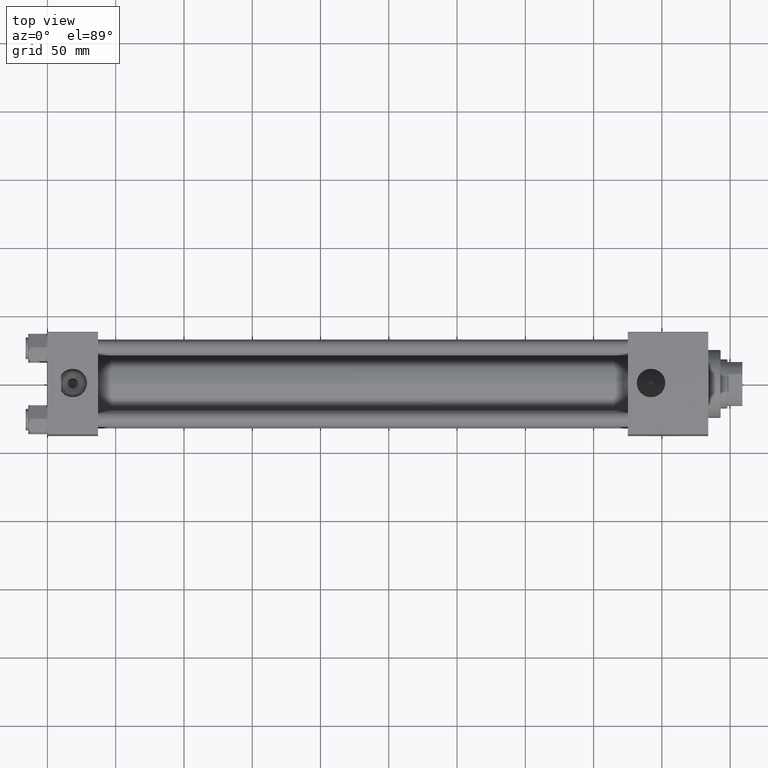
[diagram: clean part render]
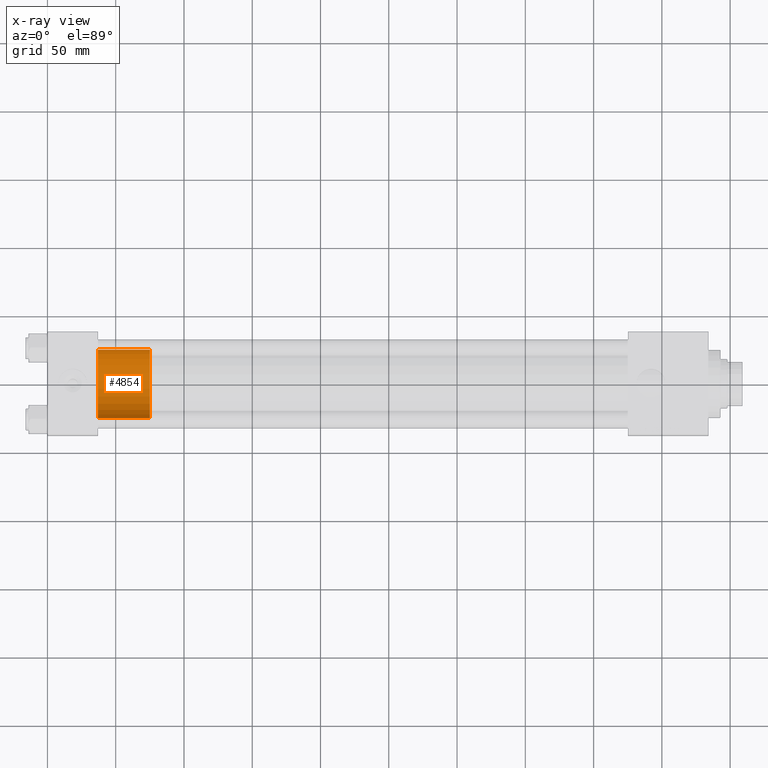
[diagram: x-ray — body ghosted, one internal face saturated and labeled with its STEP entity id]
A machine part, top view, then the same camera in x-ray: the body is ghosted and one INTERNAL B-rep face — a face not visible from any outside direction — is saturated and labeled: STEP entity #4854.
In plain terms, the highlighted cylindrical surface (edge-blend (fillet) strip) has radius 25 mm, axis along (-1, 0, 0).
Its self-contained STEP definition (entity closure, byte-faithful):
#3840 = VECTOR ( 'NONE', #8336, 1000.000000000000000 ) ;
#3967 = DIRECTION ( 'NONE',  ( 0.000000000000000000, 0.000000000000000000, 1.000000000000000000 ) ) ;
#4134 = AXIS2_PLACEMENT_3D ( 'NONE', #46118, #3967, #11345 ) ;
#4854 = ADVANCED_FACE ( 'NONE', ( #17912 ), #9034, .T. ) ;
#5343 = EDGE_CURVE ( 'NONE', #20014, #9529, #26042, .T. ) ;
#7240 = CARTESIAN_POINT ( 'NONE',  ( 25.00000000000000000, 3.061616997868383043E-15, 0.000000000000000000 ) ) ;
#7831 = ORIENTED_EDGE ( 'NONE', *, *, #31941, .T. ) ;
#8336 = DIRECTION ( 'NONE',  ( -0.000000000000000000, -0.000000000000000000, -1.000000000000000000 ) ) ;
#9034 = CYLINDRICAL_SURFACE ( 'NONE', #44663, 25.00000000000000000 ) ;
#9529 = VERTEX_POINT ( 'NONE', #32907 ) ;
#11345 = DIRECTION ( 'NONE',  ( 1.000000000000000000, 0.000000000000000000, 0.000000000000000000 ) ) ;
#12685 = EDGE_LOOP ( 'NONE', ( #47665, #7831, #49161, #45585 ) ) ;
#13846 = LINE ( 'NONE', #36446, #3840 ) ;
#15811 = DIRECTION ( 'NONE',  ( 0.000000000000000000, 0.000000000000000000, 1.000000000000000000 ) ) ;
#15863 = DIRECTION ( 'NONE',  ( -0.000000000000000000, -0.000000000000000000, -1.000000000000000000 ) ) ;
#16355 = LINE ( 'NONE', #43526, #17070 ) ;
#17070 = VECTOR ( 'NONE', #15863, 1000.000000000000000 ) ;
#17417 = DIRECTION ( 'NONE',  ( -1.000000000000000000, 0.000000000000000000, 0.000000000000000000 ) ) ;
#17912 = FACE_OUTER_BOUND ( 'NONE', #12685, .T. ) ;
#20014 = VERTEX_POINT ( 'NONE', #44515 ) ;
#26042 = CIRCLE ( 'NONE', #4134, 25.00000000000000000 ) ;
#28605 = EDGE_CURVE ( 'NONE', #9529, #40447, #13846, .T. ) ;
#29451 = CIRCLE ( 'NONE', #40791, 25.00000000000000000 ) ;
#30972 = VERTEX_POINT ( 'NONE', #7240 ) ;
#31941 = EDGE_CURVE ( 'NONE', #20014, #30972, #16355, .T. ) ;
#32907 = CARTESIAN_POINT ( 'NONE',  ( -25.00000000000000000, 0.000000000000000000, 38.00000000000000000 ) ) ;
#36446 = CARTESIAN_POINT ( 'NONE',  ( -25.00000000000000000, 0.000000000000000000, 38.00000000000000000 ) ) ;
#36708 = CARTESIAN_POINT ( 'NONE',  ( 0.000000000000000000, 0.000000000000000000, 38.00000000000000000 ) ) ;
#37215 = DIRECTION ( 'NONE',  ( -0.000000000000000000, -0.000000000000000000, -1.000000000000000000 ) ) ;
#38137 = EDGE_CURVE ( 'NONE', #30972, #40447, #29451, .T. ) ;
#40447 = VERTEX_POINT ( 'NONE', #49892 ) ;
#40791 = AXIS2_PLACEMENT_3D ( 'NONE', #43965, #15811, #43214 ) ;
#43214 = DIRECTION ( 'NONE',  ( 1.000000000000000000, 0.000000000000000000, 0.000000000000000000 ) ) ;
#43526 = CARTESIAN_POINT ( 'NONE',  ( 25.00000000000000000, 3.061616997868383043E-15, 38.00000000000000000 ) ) ;
#43965 = CARTESIAN_POINT ( 'NONE',  ( 0.000000000000000000, 0.000000000000000000, 0.000000000000000000 ) ) ;
#44515 = CARTESIAN_POINT ( 'NONE',  ( 25.00000000000000000, 3.061616997868383043E-15, 38.00000000000000000 ) ) ;
#44663 = AXIS2_PLACEMENT_3D ( 'NONE', #36708, #37215, #17417 ) ;
#45585 = ORIENTED_EDGE ( 'NONE', *, *, #28605, .F. ) ;
#46118 = CARTESIAN_POINT ( 'NONE',  ( 0.000000000000000000, 0.000000000000000000, 38.00000000000000000 ) ) ;
#47665 = ORIENTED_EDGE ( 'NONE', *, *, #5343, .F. ) ;
#49161 = ORIENTED_EDGE ( 'NONE', *, *, #38137, .T. ) ;
#49892 = CARTESIAN_POINT ( 'NONE',  ( -25.00000000000000000, 0.000000000000000000, 0.000000000000000000 ) ) ;